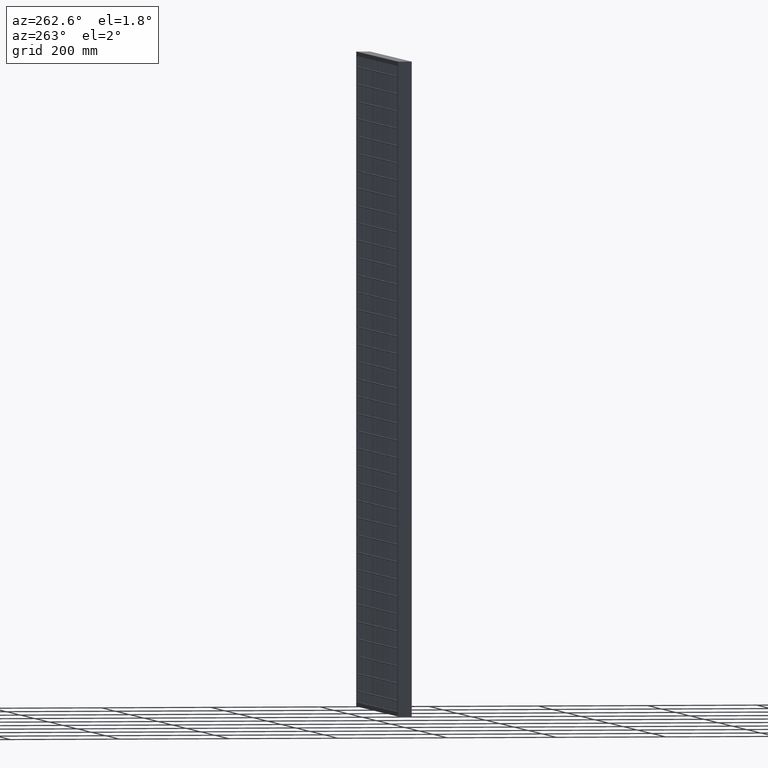
[diagram: clean part render]
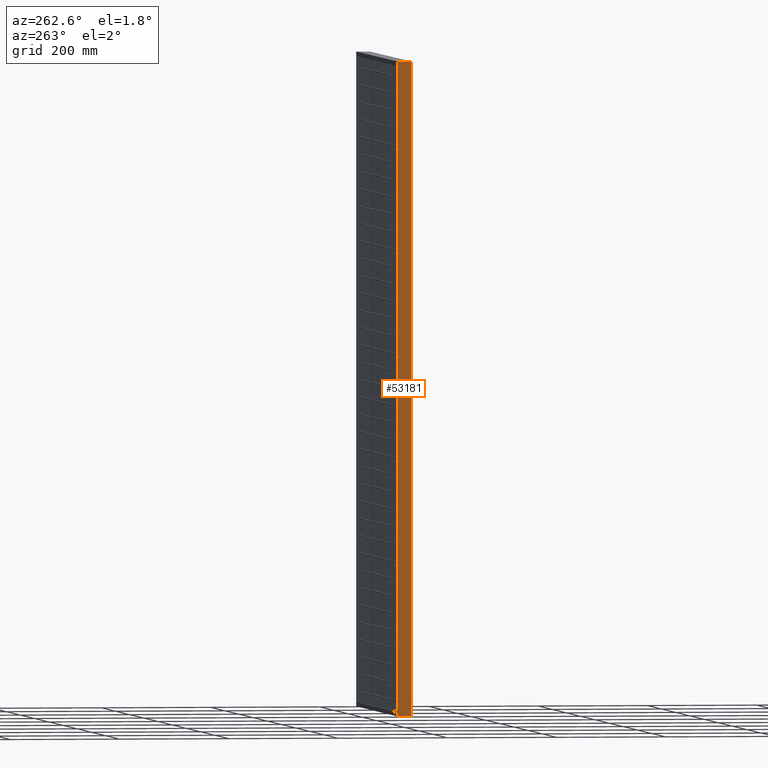
[diagram: same view with one face highlighted and labeled with its STEP entity id]
A machine part, auxiliary view. The second image highlights one B-rep face of the part: STEP entity #53181.
In plain terms, the highlighted planar face has unit normal (-1, -0, 0).
Its self-contained STEP definition (entity closure, byte-faithful):
#3135 = CARTESIAN_POINT ( 'NONE',  ( 1.377727649040772400E-015, -12.50000000000000000, -3.330669073875469600E-013 ) ) ;
#3966 = CARTESIAN_POINT ( 'NONE',  ( -4.898587196589413000E-015, 12.50000000000000000, -1242.497618993626700 ) ) ;
#4365 = EDGE_CURVE ( 'NONE', #54829, #90491, #32341, .T. ) ;
#5921 = VERTEX_POINT ( 'NONE', #36672 ) ;
#9185 = CARTESIAN_POINT ( 'NONE',  ( 2.755455298081544800E-015, -12.50000000000000000, -1190.000000000000000 ) ) ;
#10886 = VERTEX_POINT ( 'NONE', #84248 ) ;
#11089 = VECTOR ( 'NONE', #34523, 1000.000000000000000 ) ;
#17475 = CARTESIAN_POINT ( 'NONE',  ( 2.041077998578923800E-016, -4.166666666666667900, 0.0000000000000000000 ) ) ;
#19565 = CARTESIAN_POINT ( 'NONE',  ( 1.377727649040772400E-015, -12.50000000000000000, -3.330669073875469600E-013 ) ) ;
#21085 = PLANE ( 'NONE',  #64005 ) ;
#22156 = EDGE_LOOP ( 'NONE', ( #55082, #93813, #95218, #78431 ) ) ;
#23205 = DIRECTION ( 'NONE',  ( -0.0000000000000000000, -0.0000000000000000000, 1.000000000000000000 ) ) ;
#23846 = VECTOR ( 'NONE', #80085, 1000.000000000000000 ) ;
#24047 = CARTESIAN_POINT ( 'NONE',  ( -4.898587196589417800E-015, 12.50000000000001600, -1190.000000000000000 ) ) ;
#26119 = CARTESIAN_POINT ( 'NONE',  ( 2.755455298081544800E-015, -12.50000000000000000, -1242.497618993626700 ) ) ;
#27210 = B_SPLINE_CURVE_WITH_KNOTS ( 'NONE', 3,
 ( #3135, #17475, #81560, #74223 ),
 .UNSPECIFIED., .F., .F.,
 ( 4, 4 ),
 ( 0.0000000000000000000, 1.000000000000000000 ),
 .UNSPECIFIED. ) ;
#29990 = LINE ( 'NONE', #56164, #52551 ) ;
#32341 = LINE ( 'NONE', #26119, #11089 ) ;
#34523 = DIRECTION ( 'NONE',  ( -0.0000000000000000000, -0.0000000000000000000, 1.000000000000000000 ) ) ;
#35125 = LINE ( 'NONE', #24047, #23846 ) ;
#36672 = CARTESIAN_POINT ( 'NONE',  ( -2.171313971796572000E-028, 12.50000000000000000, 1.224646799147369200E-014 ) ) ;
#52287 = EDGE_CURVE ( 'NONE', #10886, #54829, #35125, .T. ) ;
#52551 = VECTOR ( 'NONE', #23205, 1000.000000000000000 ) ;
#53181 = ADVANCED_FACE ( 'NONE', ( #73802 ), #21085, .T. ) ;
#54829 = VERTEX_POINT ( 'NONE', #9185 ) ;
#55082 = ORIENTED_EDGE ( 'NONE', *, *, #4365, .T. ) ;
#56164 = CARTESIAN_POINT ( 'NONE',  ( -4.898587196589413000E-015, 12.50000000000000000, -1242.497618993626700 ) ) ;
#64005 = AXIS2_PLACEMENT_3D ( 'NONE', #3966, #69448, #76427 ) ;
#64804 = EDGE_CURVE ( 'NONE', #90491, #5921, #27210, .T. ) ;
#69448 = DIRECTION ( 'NONE',  ( -1.000000000000000000, -3.061616997868383100E-016, 0.0000000000000000000 ) ) ;
#73802 = FACE_OUTER_BOUND ( 'NONE', #22156, .T. ) ;
#74223 = CARTESIAN_POINT ( 'NONE',  ( -2.171313971796572000E-028, 12.50000000000000000, 1.224646799147369200E-014 ) ) ;
#76427 = DIRECTION ( 'NONE',  ( 3.061616997868383100E-016, -1.000000000000000000, 0.0000000000000000000 ) ) ;
#78431 = ORIENTED_EDGE ( 'NONE', *, *, #52287, .T. ) ;
#80085 = DIRECTION ( 'NONE',  ( 3.061616997868383100E-016, -1.000000000000000000, 3.061616997868383100E-016 ) ) ;
#81560 = CARTESIAN_POINT ( 'NONE',  ( -2.347239698365760600E-015, 4.166666666666667900, 0.0000000000000000000 ) ) ;
#84248 = CARTESIAN_POINT ( 'NONE',  ( -4.898587196589413000E-015, 12.50000000000000000, -1190.000000000000000 ) ) ;
#85985 = EDGE_CURVE ( 'NONE', #10886, #5921, #29990, .T. ) ;
#90491 = VERTEX_POINT ( 'NONE', #19565 ) ;
#93813 = ORIENTED_EDGE ( 'NONE', *, *, #64804, .T. ) ;
#95218 = ORIENTED_EDGE ( 'NONE', *, *, #85985, .F. ) ;